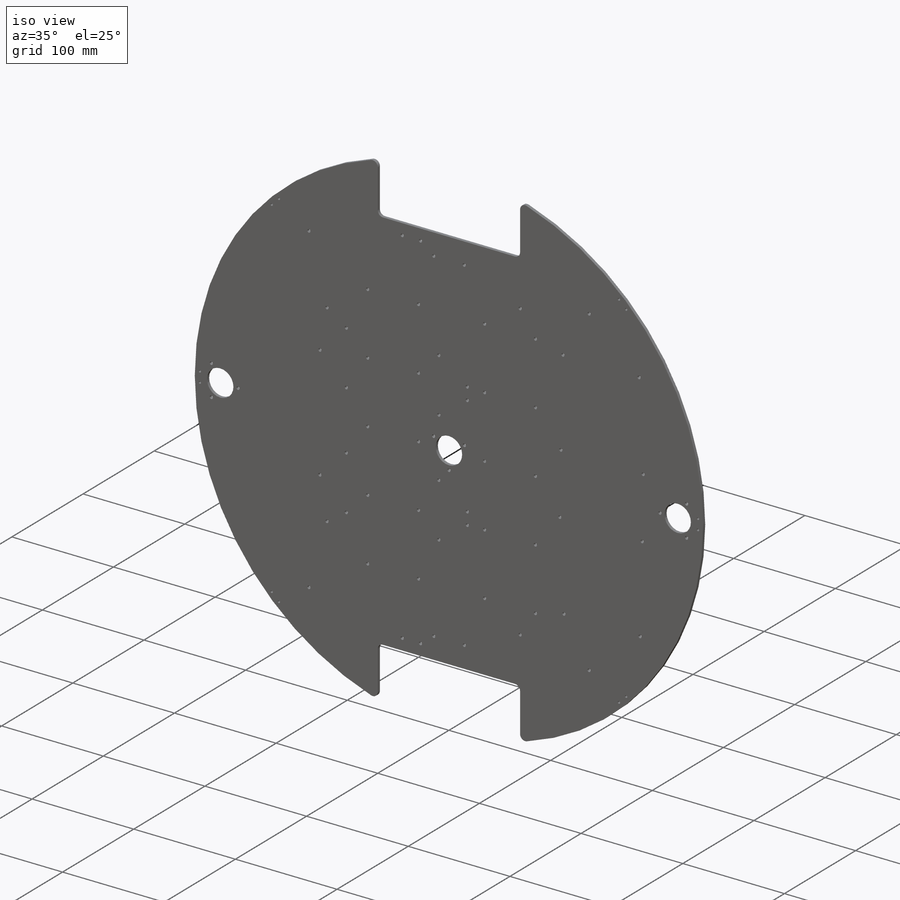
[diagram: iso view]
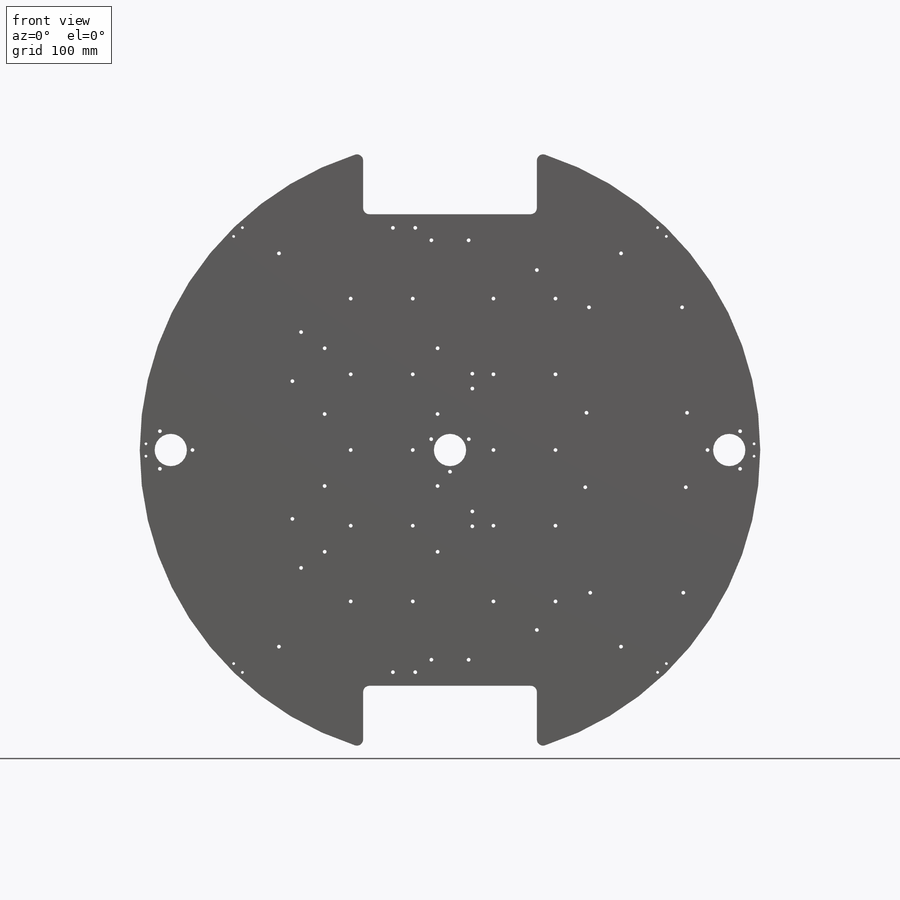
[diagram: front view]
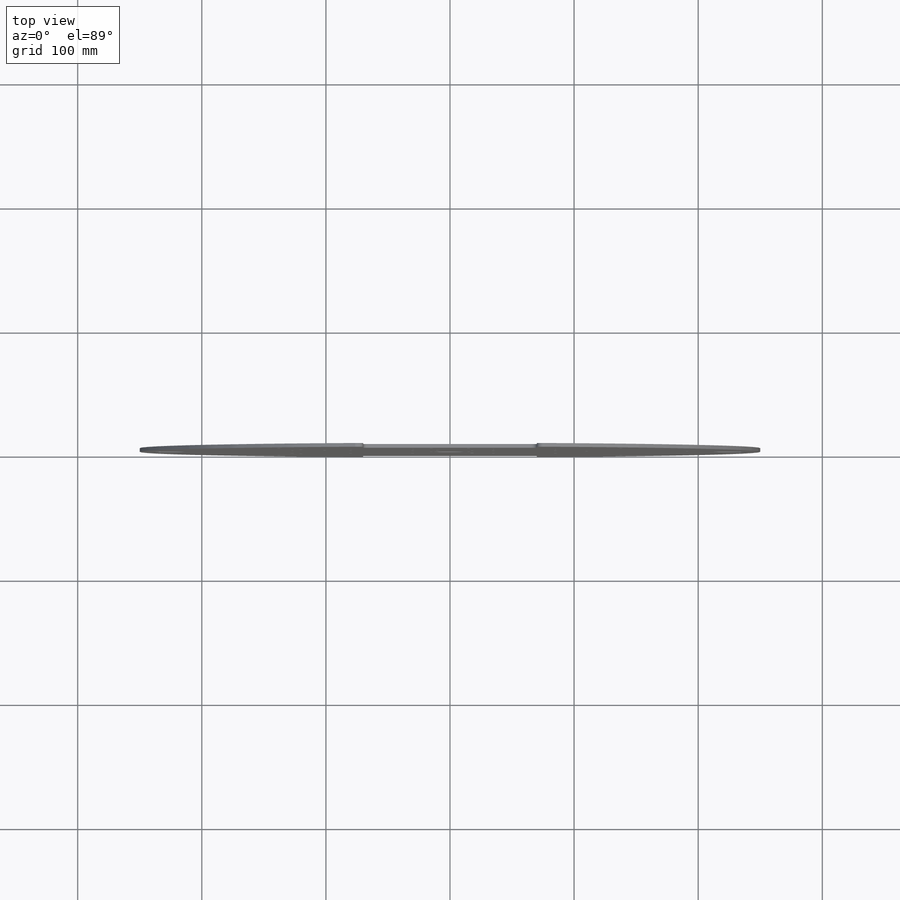
[diagram: top view]
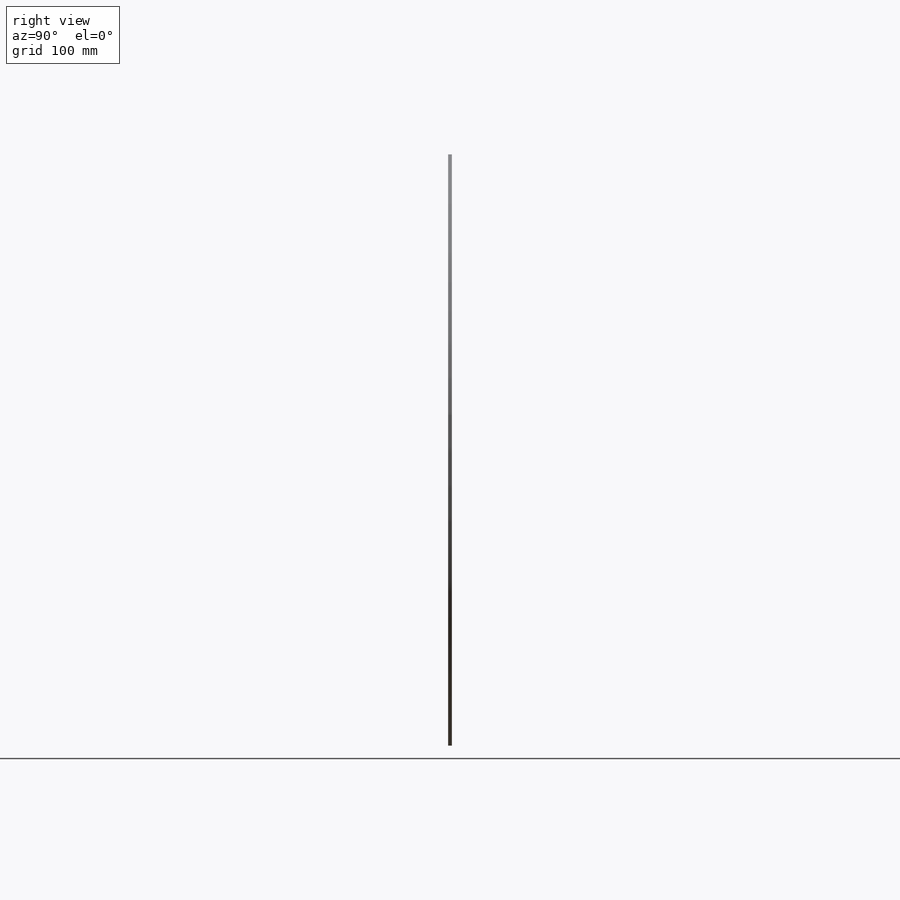
[diagram: right view]
SOLIDWORKS PART (.sldprt)
format: sldprt  version: not decoded by parser v0  size: 1,536,000 bytes
history: native  units: mm
features: sketch x11, cut_extrude x10, fillet x8, plane x3, material x1, extrude x1 + 2 further entries (+8 scaffold rows collapsed)
feature tree (44):
  scaffold x8  (default folders/planes/origin — collapsed)
  material  "ｱｸﾘﾙ (中-上級の耐衝撃性)"
  "ｻｰﾌｪｽ ﾎﾞﾃﾞｨ"
  "ｿﾘｯﾄﾞ ﾎﾞﾃﾞｨ"
  plane  "正面"
  plane  "平面"
  plane  "右側面"
  sketch  "ｽｹｯﾁ1"  dims[D1=500.0mm]
  extrude  "ﾎﾞｽ - 押し出し1"  Depth=3mm
  sketch  "ｽｹｯﾁ2"  dims[D1=190.0mm D2=70.0mm D3=70.0mm]
  cut_extrude  "ｶｯﾄ - 押し出し1"  [1 undecoded]
  sketch  "ｽｹｯﾁ3"  dims[c1.D1=190.0mm c1.D2=70.0mm c1.D3=70.0mm c1.D4=60.0mm c2.D2=140.0mm]
  cut_extrude  "ｶｯﾄ - 押し出し2"  [1 undecoded]
  fillet  "ﾌｨﾚｯﾄ1"  Radius=5mm
  fillet  "ﾌｨﾚｯﾄ2"  Radius=5mm
  fillet  "ﾌｨﾚｯﾄ3"  Radius=5mm
  fillet  "ﾌｨﾚｯﾄ4"  Radius=5mm
  fillet  "ﾌｨﾚｯﾄ5"  Radius=5mm
  fillet  "ﾌｨﾚｯﾄ6"  Radius=5mm
  fillet  "ﾌｨﾚｯﾄ7"  Radius=5mm
  fillet  "ﾌｨﾚｯﾄ8"  Radius=5mm
  sketch  "ｽｹｯﾁ4"  dims[c1.D1=3.0mm c1.D2=3.0mm c1.D3=3.0mm c1.D5=3.0mm c1.D6=3.0mm c1.D8=3.0mm c1.D9=3.0mm c1.D10=3.0mm c1.D11=3.0mm c1.D12=3.0mm c1.D13=~6.703764mm c1.D14=~6.703764mm c1.D16=3.0mm c1.D17=3.0mm c1.D19=~4.409614mm c1.D20=3.0mm c1.D21=3.0mm c2.D2=3.0mm c2.D3=3.0mm c2.D4=3.0mm c2.D6=3.0mm c3.D3=15.0mm c3.D4=15.0mm c3.D7=15.0mm c3.D8=15.0mm c3.D9=21.0mm c3.D10=21.0mm c3.D11=21.0mm c3.D12=21.0mm c3.D13=28.0mm c3.D14=18.0mm c3.D15=11.0mm c3.D18=28.0mm c3.D19=18.0mm c3.D2=30.0mm c4.D3=21.0mm c4.D4=30.0mm c4.D5=28.0mm c4.D6=11.0mm c4.D7=11.0mm c5.D6=11.0mm c5.D7=18.0mm]
  cut_extrude  "ｶｯﾄ - 押し出し3"  [1 undecoded]
  sketch  "ｽｹｯﾁ15"  dims[c1.D5=~20.618016mm c1.D6=~18.138256mm c1.D7=~30.213343mm c1.D8=~31.880155mm c1.D9=3.0mm c1.D10=3.0mm c1.D11=3.0mm c1.D12=3.0mm c1.D13=~20.951534mm c1.D14=~32.532622mm c1.D15=~22.90776mm c1.D16=~22.903685mm c1.D17=3.0mm c1.D18=3.0mm c1.D19=3.0mm c1.D20=3.0mm c1.D21=3.0mm c1.D22=3.0mm c1.D1=3.0mm c2.D8=3.0mm c2.D9=3.0mm c2.D1=~151.250525mm c3.D1=48.99deg c3.D2=~151.250525mm c4.D2=48.99deg c4.D3=~151.250525mm c5.D3=48.99deg c5.D4=~151.250525mm c6.D4=48.99deg c6.D5=210.0mm c6.D6=210.0mm c6.D7=210.0mm c6.D8=210.0mm c6.D13=110.0mm c6.D14=110.0mm c6.D15=110.0mm c6.D16=110.0mm c6.D21=~166.009454mm c6.D22=~144.360693mm c6.D2=250.0mm c7.D2=48.99deg c7.D3=~163.255076mm c8.D3=48.99deg c8.D4=~164.837409mm c9.D4=48.99deg c9.D13=250.0mm c10.D13=48.99deg c10.D4=250.0mm c11.D4=48.99deg c11.D7=500.0mm c12.D7=48.99deg c12.D8=210.0mm c12.D9=210.0mm]
  cut_extrude  "ｶｯﾄ - 押し出し5"  [1 undecoded]
  sketch  "ｽｹｯﾁ17"  dims[c1.D3=~11.022962mm c1.D4=~11.022962mm c1.D5=~11.022962mm c1.D6=~7.471743mm c1.D7=3.0mm c1.D8=3.0mm c1.D9=3.0mm c1.D10=3.0mm c2.D6=~11.527847mm c2.D11=~15.386406mm c2.D14=3.0mm c2.D15=3.0mm c2.D16=3.0mm c2.D17=3.0mm c2.D18=3.0mm c2.D3=3.0mm c2.D4=3.0mm c2.D19=3.0mm c2.D20=3.0mm c2.D22=3.0mm c2.D23=3.0mm c2.D24=3.0mm c2.D25=3.0mm c3.D3=3.0mm c3.D19=3.0mm c3.D23=3.0mm c3.D1=~19.780887mm c4.D3=~14.521009mm c4.D4=~19.235137mm c4.D5=~23.206151mm c4.D8=~12.777078mm c4.D9=~19.780887mm c4.D10=~13.327542mm c4.D11=~19.203204mm c4.D12=~20.31143mm c4.D13=3.0mm c4.D14=3.0mm c4.D15=3.0mm c4.D16=3.0mm c4.D17=3.0mm c4.D18=3.0mm c4.D19=3.0mm c4.D20=3.0mm c5.D3=3.0mm c5.D4=3.0mm c5.D5=3.0mm c5.D8=3.0mm c5.D1=166.01mm c5.D2=83.005mm c6.D3=166.01mm c6.D4=83.005mm c6.D5=45.0mm c6.D6=45.0mm c7.D5=50.0mm c7.D6=50.0mm c7.D11=50.0mm c7.D12=50.0mm c7.D13=35.0mm c7.D14=30.0mm c7.D2=180.0mm c7.D3=180.0mm c7.D4=90.0mm c7.D19=90.0mm c7.D20=90.0mm c7.D21=90.0mm c7.D22=180.0mm c7.D23=180.0mm c7.D24=90.0mm c7.D25=90.0mm c8.D2=122.0mm c8.D3=122.0mm c8.D4=122.0mm c8.D19=122.0mm c8.D20=122.0mm c8.D21=122.0mm c8.D22=122.0mm c8.D23=122.0mm c8.D24=30.0mm c8.D25=35.0mm c8.D6=50.0mm c8.D7=244.0mm c8.D1=30.0mm c9.D3=61.0mm c9.D4=61.0mm c9.D5=61.0mm c9.D8=61.0mm c9.D9=61.0mm c9.D10=61.0mm c9.D11=61.0mm c9.D12=61.0mm c9.D1=122.0mm c10.D9=35.0mm c10.D10=85.0mm c10.D11=30.0mm c10.D12=80.0mm c10.D3=61.0mm c10.D4=122.0mm]
  cut_extrude  "ｶｯﾄ - 押し出し7"  [1 undecoded]
  sketch  "ｽｹｯﾁ18"  dims[c1.D1=26.0mm c1.D2=26.0mm c1.D3=26.0mm c1.D4=26.0mm c1.D13=3.0mm c1.D14=3.0mm c1.D15=3.0mm c1.D16=3.0mm c1.D17=3.0mm c1.D18=26.0mm c1.D19=3.0mm c1.D20=3.0mm c1.D21=3.0mm c1.D22=3.0mm c1.D23=3.0mm c1.D24=3.0mm c1.D25=3.0mm c1.D26=3.0mm c1.D27=3.0mm c1.D28=3.0mm c1.D29=3.0mm c1.D30=3.0mm c2.D4=25.0mm c2.D5=25.0mm c2.D6=500.0mm c3.D6=60.0deg c3.D7=500.0mm c4.D7=60.0deg c4.D8=500.0mm c5.D8=60.0deg c5.D9=500.0mm c6.D9=60.0deg c6.D10=500.0mm c7.D10=30.0deg c7.D11=~34.919849mm c8.D11=30.0deg c8.D12=~17.459924mm c9.D12=120.0deg c9.D16=17.5mm c9.D17=17.5mm c9.D18=17.5mm c9.D22=17.5mm c9.D23=17.5mm c9.D24=17.5mm c9.D28=17.5mm c9.D29=17.5mm c9.D30=17.5mm c9.D3=~30.241476mm c10.D3=120.0deg c10.D4=~28.821622mm c11.D4=120.0deg]
  cut_extrude  "ｶｯﾄ - 押し出し8"  [1 undecoded]
  sketch  "ｽｹｯﾁ19"  dims[c1.D1=~21.447458mm c1.D2=~17.841933mm c1.D4=~13.588011mm c1.D5=~16.400997mm c1.D6=~16.400997mm c1.D7=~13.588011mm c1.D8=~23.263035mm c1.D9=~24.234836mm c1.D12=3.0mm c1.D13=3.0mm c1.D14=3.0mm c1.D15=3.0mm c1.D16=3.0mm c1.D17=3.0mm c1.D18=3.0mm c1.D19=3.0mm c2.D1=38.0mm c2.D2=37.0mm c2.D3=30.0mm c2.D4=30.0mm c2.D5=150.0mm c2.D6=41.0mm c2.D7=40.0mm c2.D8=41.0mm c2.D9=40.0mm c2.D10=37.0mm c2.D11=38.0mm c2.D20=85.0mm c2.D21=85.0mm c2.D22=30.0mm c2.D23=30.0mm c2.D24=85.0mm c2.D25=85.0mm]
  cut_extrude  "ｶｯﾄ - 押し出し9"  [1 undecoded]
  sketch  "ｽｹｯﾁ21"  dims[c1.D1=~11.684706mm c1.D2=~21.640476mm c1.D3=~11.684706mm c1.D4=~21.640476mm c1.D5=3.0mm c1.D6=3.0mm c1.D7=~16.611536mm c1.D8=~20.057239mm c1.D9=3.0mm c1.D10=3.0mm c1.D13=3.0mm c1.D14=3.0mm c2.D7=3.0mm c2.D8=3.0mm c2.D11=3.0mm c2.D4=3.0mm c2.D1=120.0mm c2.D2=120.0mm c2.D3=95.0mm c3.D4=95.0mm c3.D7=145.0mm c3.D8=145.0mm c3.D11=70.0mm c3.D12=70.0mm c3.D13=70.0mm c3.D14=70.0mm c4.D7=145.0mm c4.D8=70.0mm c4.D11=70.0mm c4.D13=145.0mm c4.D2=95.0mm c4.D4=120.0mm c4.D5=70.0mm c4.D6=145.0mm]
  cut_extrude  "ｶｯﾄ - 押し出し11"  [1 undecoded]
  sketch  "ｽｹｯﾁ22"  dims[c1.D1=3.0mm c1.D2=3.0mm c1.D3=6.0mm c1.D4=6.0mm c1.D6=~7.47643mm c1.D7=~7.656923mm c1.D8=~9.926016mm c1.D9=~8.301698mm c1.D10=~7.060076mm c1.D11=3.0mm c1.D12=3.0mm c1.D13=3.0mm c1.D14=3.0mm c1.D15=3.0mm c1.D18=3.0mm c1.D19=3.0mm c1.D21=6.0mm c1.D22=6.0mm c1.D23=~8.47606mm c1.D24=~6.634572mm c1.D25=~9.811544mm c1.D26=~9.518264mm c1.D27=6.0mm c1.D28=6.0mm c1.D29=3.0mm c1.D30=3.0mm c2.D21=6.0mm c2.D22=6.0mm c2.D31=3.0mm c2.D32=3.0mm c2.D27=~12.148296mm c2.D28=3.0mm c2.D10=6.0mm c2.D20=6.0mm c2.D24=6.0mm c2.D25=6.0mm c2.D26=6.0mm c3.D27=6.0mm c3.D3=3.0mm c3.D4=3.0mm c3.D6=3.0mm c3.D9=3.0mm c4.D3=6.0mm c4.D4=6.0mm c4.D5=8.0mm c4.D6=6.0mm c4.D7=6.0mm c4.D8=6.0mm c4.D9=6.0mm c4.D10=6.0mm c4.D16=20.0mm c4.D17=20.0mm c4.D20=8.0mm c4.D21=6.0mm c4.D22=6.0mm c4.D23=6.0mm c4.D24=6.0mm c4.D25=6.0mm c4.D26=6.0mm c4.D27=~18.308104mm c4.D28=8.0mm c5.D21=6.0mm c5.D22=6.0mm c5.D33=20.5mm c5.D27=8.0mm c5.D5=91.0mm c5.D6=55.5mm c5.D7=55.5mm c5.D8=~26.630423mm c5.D9=28.0mm c5.D10=26.0mm c5.D16=91.0mm c5.D17=28.0mm c5.D20=26.0mm c6.D8=18.0mm c6.D23=18.0mm c6.D24=10.0mm c6.D25=53.0mm c6.D26=53.0mm c6.D5=91.0mm c6.D3=12.0mm c6.D4=53.0mm c7.D5=26.0mm c7.D6=91.0mm c7.D8=28.0mm c7.D9=18.0mm c7.D10=55.5mm]
  cut_extrude  "ｶｯﾄ - 押し出し12"  [1 undecoded]
  sketch  "ｽｹｯﾁ23"  dims[c1.D5=~15.12637mm c1.D6=~7.803639mm c1.D7=~15.12637mm c1.D8=~7.803639mm c1.D9=~7.095181mm c1.D10=~10.844392mm c1.D11=~10.844392mm c1.D12=~7.095181mm c1.D14=~7.606015mm c1.D15=~7.606015mm c1.D16=2.2mm c1.D17=~7.460222mm c1.D19=~6.843309mm c1.D20=~6.843309mm c1.D22=~3.815796mm c1.D23=~5.723694mm c1.D24=~7.441525mm c1.D25=~7.057522mm c1.D30=2.2mm c1.D31=2.2mm c1.D32=2.2mm c1.D33=2.2mm c1.D34=2.2mm c1.D35=2.2mm c1.D36=2.2mm c1.D37=2.2mm c1.D38=2.2mm c1.D39=2.2mm c1.D40=2.2mm c1.D41=~7.460222mm c1.D42=~7.460222mm c1.D4=2.2mm c2.D5=2.2mm c2.D6=2.2mm c2.D7=2.2mm c2.D8=2.2mm c2.D9=2.2mm c2.D10=2.2mm c2.D12=2.2mm c2.D13=2.2mm c2.D14=2.2mm c2.D15=2.2mm c2.D16=2.2mm c2.D17=2.2mm c2.D20=2.2mm c2.D21=2.2mm c2.D22=2.2mm c2.D23=2.2mm c2.D24=2.2mm c2.D25=2.2mm c2.D26=2.2mm c2.D27=2.2mm c2.D28=2.2mm c2.D29=2.2mm c2.D30=2.2mm c2.D31=2.2mm c2.D32=2.2mm c2.D1=250.0mm c3.D1=45.8deg c3.D2=500.0mm c4.D2=45.8deg c4.D3=500.0mm c5.D3=45.8deg c5.D4=500.0mm c6.D4=45.8deg c6.D5=5.0mm c6.D6=5.0mm c6.D7=5.0mm c6.D8=5.0mm c6.D9=5.0mm c6.D10=5.0mm c6.D11=5.0mm c6.D12=5.0mm c6.D13=5.0mm c6.D14=5.0mm c6.D15=5.0mm c6.D17=5.0mm c6.D18=5.0mm c6.D19=5.0mm c6.D20=5.0mm c6.D21=5.0mm c6.D22=5.0mm c6.D23=5.0mm c6.D24=5.0mm c6.D25=5.0mm c6.D26=5.0mm c6.D27=5.0mm c6.D28=5.0mm c6.D29=5.0mm c7.D4=10.0mm c7.D16=5.0mm c7.D17=5.0mm c7.D18=250.0mm c8.D18=45.8deg c8.D19=250.0mm c9.D19=45.8deg c9.D20=5.0mm c9.D21=10.0mm c9.D22=5.0mm c9.D23=5.0mm c9.D24=10.0mm c9.D25=5.0mm c9.D26=10.0mm c9.D27=5.0mm c9.D28=5.0mm c9.D29=5.0mm c9.D30=5.0mm c9.D31=5.0mm c9.D32=10.0mm]
  cut_extrude  "ｶｯﾄ - 押し出し13"  [1 undecoded]
decode coverage: 20 of 30 modeling features carry decoded parameters; 2 rows unclassified (native names shown)
note: ~ marks probable driven/reference dimensions
note: 10 parameter values undecoded
summary: no parameter record found for 10 features
note: suppression state not decoded; provenance and decode notes live in map.json
